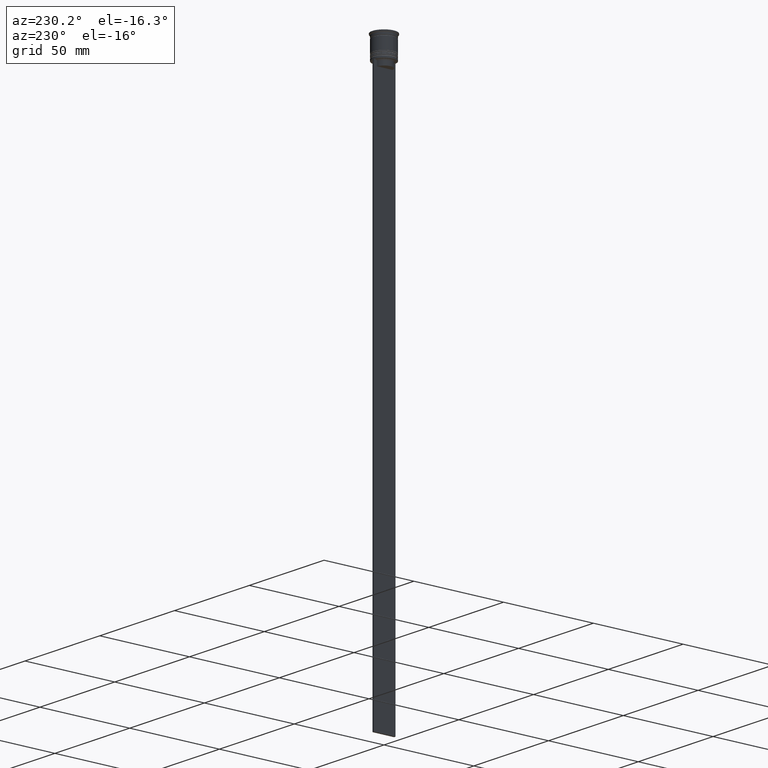
[diagram: clean part render]
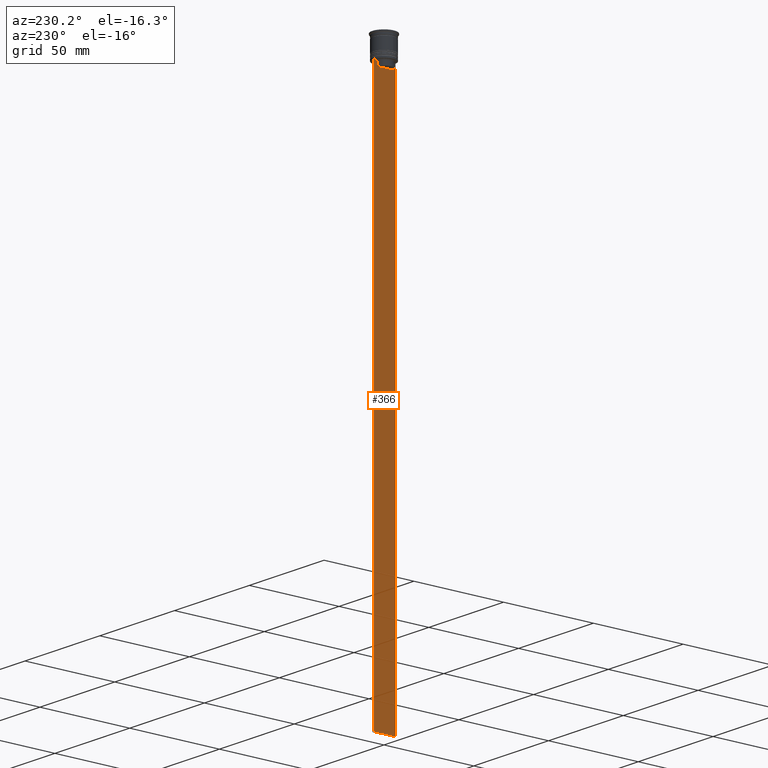
[diagram: same view with one face highlighted and labeled with its STEP entity id]
A machine part, auxiliary view. The second image highlights one B-rep face of the part: STEP entity #366.
In plain terms, the highlighted planar face has unit normal (-1, 0, 0).
Its self-contained STEP definition (entity closure, byte-faithful):
#11 = ORIENTED_EDGE ( 'NONE', *, *, #856, .F. ) ;
#26 = CARTESIAN_POINT ( 'NONE',  ( -0.4999999999999997780, 4.706831415367290106, -12.66671683478478982 ) ) ;
#105 = ORIENTED_EDGE ( 'NONE', *, *, #653, .F. ) ;
#133 = VECTOR ( 'NONE', #658, 1000.000000000000000 ) ;
#157 = CARTESIAN_POINT ( 'NONE',  ( -0.4999999999999997780, -4.371498598878878816, -15.50000000000000000 ) ) ;
#161 = ORIENTED_EDGE ( 'NONE', *, *, #1683, .F. ) ;
#169 = CARTESIAN_POINT ( 'NONE',  ( -0.4999999999999997780, -4.874423042781576676, -12.50000000000000000 ) ) ;
#196 = VERTEX_POINT ( 'NONE', #1521 ) ;
#200 = B_SPLINE_CURVE_WITH_KNOTS ( 'NONE', 3,
 ( #437, #26, #1167, #425 ),
 .UNSPECIFIED., .F., .F.,
 ( 4, 4 ),
 ( 0.008336552452178418518, 0.009045730124312837891 ),
 .UNSPECIFIED. ) ;
#222 = PLANE ( 'NONE',  #946 ) ;
#228 = EDGE_CURVE ( 'NONE', #196, #1793, #1161, .T. ) ;
#230 = LINE ( 'NONE', #1208, #1383 ) ;
#253 = VECTOR ( 'NONE', #2290, 1000.000000000000000 ) ;
#284 = VERTEX_POINT ( 'NONE', #169 ) ;
#348 = CARTESIAN_POINT ( 'NONE',  ( -0.4999999999999997780, -4.371498598878878816, -13.00000000000000178 ) ) ;
#366 = ADVANCED_FACE ( 'NONE', ( #441 ), #222, .T. ) ;
#413 = VERTEX_POINT ( 'NONE', #2334 ) ;
#415 = CARTESIAN_POINT ( 'NONE',  ( -0.4999999999999997780, -6.000000000000000000, -0.4584054212077061097 ) ) ;
#425 = CARTESIAN_POINT ( 'NONE',  ( -0.4999999999999997780, 4.371498598878878816, -13.00000000000000178 ) ) ;
#437 = CARTESIAN_POINT ( 'NONE',  ( -0.4999999999999997780, 4.874423042781576676, -12.50000000000000000 ) ) ;
#441 = FACE_OUTER_BOUND ( 'NONE', #2356, .T. ) ;
#449 = VERTEX_POINT ( 'NONE', #2196 ) ;
#463 = ORIENTED_EDGE ( 'NONE', *, *, #612, .F. ) ;
#496 = CARTESIAN_POINT ( 'NONE',  ( -0.4999999999999997780, 6.000000000000000888, -0.4584054212077061097 ) ) ;
#499 = VERTEX_POINT ( 'NONE', #891 ) ;
#507 = DIRECTION ( 'NONE',  ( 0.000000000000000000, -1.000000000000000000, 0.000000000000000000 ) ) ;
#572 = CARTESIAN_POINT ( 'NONE',  ( -0.4999999999999997780, -4.874423042781576676, -12.50000000000000000 ) ) ;
#605 = CARTESIAN_POINT ( 'NONE',  ( -0.4999999999999997780, -6.000000000000000000, -312.5000000000000000 ) ) ;
#608 = EDGE_CURVE ( 'NONE', #284, #413, #1510, .T. ) ;
#612 = EDGE_CURVE ( 'NONE', #449, #1492, #727, .T. ) ;
#636 = ORIENTED_EDGE ( 'NONE', *, *, #1894, .T. ) ;
#649 = VERTEX_POINT ( 'NONE', #2269 ) ;
#653 = EDGE_CURVE ( 'NONE', #1859, #1127, #1519, .T. ) ;
#658 = DIRECTION ( 'NONE',  ( 0.000000000000000000, -1.000000000000000000, 0.000000000000000000 ) ) ;
#727 = LINE ( 'NONE', #738, #253 ) ;
#738 = CARTESIAN_POINT ( 'NONE',  ( -0.4999999999999997780, -6.000000000000000000, -12.50000000000000000 ) ) ;
#752 = EDGE_CURVE ( 'NONE', #1528, #649, #230, .T. ) ;
#754 = DIRECTION ( 'NONE',  ( 0.000000000000000000, 0.000000000000000000, -1.000000000000000000 ) ) ;
#773 = DIRECTION ( 'NONE',  ( 0.000000000000000000, -1.000000000000000000, 0.000000000000000000 ) ) ;
#856 = EDGE_CURVE ( 'NONE', #1793, #1859, #1244, .T. ) ;
#891 = CARTESIAN_POINT ( 'NONE',  ( -0.4999999999999997780, 6.000000000000001776, -12.50000000000000000 ) ) ;
#943 = CARTESIAN_POINT ( 'NONE',  ( -0.4999999999999997780, -6.000000000000000000, -0.4584054212077061097 ) ) ;
#946 = AXIS2_PLACEMENT_3D ( 'NONE', #415, #1984, #1186 ) ;
#1114 = CARTESIAN_POINT ( 'NONE',  ( -0.4999999999999997780, 4.371498598878878816, -15.50000000000000000 ) ) ;
#1127 = VERTEX_POINT ( 'NONE', #2301 ) ;
#1161 = LINE ( 'NONE', #1724, #1944 ) ;
#1167 = CARTESIAN_POINT ( 'NONE',  ( -0.4999999999999997780, 4.539195634199897356, -12.83338923751318816 ) ) ;
#1186 = DIRECTION ( 'NONE',  ( 0.000000000000000000, 0.000000000000000000, 1.000000000000000000 ) ) ;
#1201 = B_SPLINE_CURVE_WITH_KNOTS ( 'NONE', 3,
 ( #348, #1517, #2435, #572 ),
 .UNSPECIFIED., .F., .F.,
 ( 4, 4 ),
 ( 0.02089901220910806920, 0.02161421017310284978 ),
 .UNSPECIFIED. ) ;
#1208 = CARTESIAN_POINT ( 'NONE',  ( -0.4999999999999997780, -6.000000000000000000, -312.5000000000000000 ) ) ;
#1240 = DIRECTION ( 'NONE',  ( 0.000000000000000000, -1.000000000000000000, 0.000000000000000000 ) ) ;
#1244 = LINE ( 'NONE', #1615, #133 ) ;
#1274 = LINE ( 'NONE', #496, #1298 ) ;
#1298 = VECTOR ( 'NONE', #2035, 1000.000000000000000 ) ;
#1374 = VECTOR ( 'NONE', #1240, 1000.000000000000000 ) ;
#1383 = VECTOR ( 'NONE', #1957, 1000.000000000000000 ) ;
#1468 = VECTOR ( 'NONE', #773, 1000.000000000000000 ) ;
#1492 = VERTEX_POINT ( 'NONE', #1660 ) ;
#1510 = LINE ( 'NONE', #1713, #1468 ) ;
#1517 = CARTESIAN_POINT ( 'NONE',  ( -0.4999999999999997780, -4.539195586926424220, -12.83338928448044136 ) ) ;
#1519 = LINE ( 'NONE', #1868, #1661 ) ;
#1521 = CARTESIAN_POINT ( 'NONE',  ( -0.4999999999999997780, 4.371498598878878816, -13.00000000000000178 ) ) ;
#1528 = VERTEX_POINT ( 'NONE', #605 ) ;
#1529 = DIRECTION ( 'NONE',  ( -0.000000000000000000, -0.000000000000000000, 1.000000000000000000 ) ) ;
#1615 = CARTESIAN_POINT ( 'NONE',  ( -0.4999999999999997780, 4.399999999999999467, -15.50000000000000000 ) ) ;
#1644 = ORIENTED_EDGE ( 'NONE', *, *, #228, .F. ) ;
#1660 = CARTESIAN_POINT ( 'NONE',  ( -0.4999999999999997780, 4.874423042781576676, -12.50000000000000000 ) ) ;
#1661 = VECTOR ( 'NONE', #1529, 1000.000000000000000 ) ;
#1665 = DIRECTION ( 'NONE',  ( 0.000000000000000000, 0.000000000000000000, -1.000000000000000000 ) ) ;
#1683 = EDGE_CURVE ( 'NONE', #413, #1709, #1961, .T. ) ;
#1709 = VERTEX_POINT ( 'NONE', #2353 ) ;
#1710 = LINE ( 'NONE', #943, #2148 ) ;
#1713 = CARTESIAN_POINT ( 'NONE',  ( -0.4999999999999997780, -6.000000000000000000, -12.50000000000000000 ) ) ;
#1724 = CARTESIAN_POINT ( 'NONE',  ( -0.4999999999999997780, 4.371498598878878816, 0.000000000000000000 ) ) ;
#1793 = VERTEX_POINT ( 'NONE', #1114 ) ;
#1829 = CARTESIAN_POINT ( 'NONE',  ( -0.4999999999999997780, -6.000000000000000000, -12.50000000000000000 ) ) ;
#1859 = VERTEX_POINT ( 'NONE', #157 ) ;
#1868 = CARTESIAN_POINT ( 'NONE',  ( -0.4999999999999997780, -4.371498598878878816, 0.000000000000000000 ) ) ;
#1894 = EDGE_CURVE ( 'NONE', #499, #649, #1274, .T. ) ;
#1944 = VECTOR ( 'NONE', #754, 1000.000000000000000 ) ;
#1957 = DIRECTION ( 'NONE',  ( 0.000000000000000000, 1.000000000000000000, 0.000000000000000000 ) ) ;
#1961 = LINE ( 'NONE', #2008, #1374 ) ;
#1984 = DIRECTION ( 'NONE',  ( -1.000000000000000000, 0.000000000000000000, 0.000000000000000000 ) ) ;
#2008 = CARTESIAN_POINT ( 'NONE',  ( -0.4999999999999997780, -6.000000000000000000, -12.50000000000000000 ) ) ;
#2035 = DIRECTION ( 'NONE',  ( 0.000000000000000000, 0.000000000000000000, -1.000000000000000000 ) ) ;
#2076 = ORIENTED_EDGE ( 'NONE', *, *, #2373, .F. ) ;
#2115 = EDGE_CURVE ( 'NONE', #499, #449, #2369, .T. ) ;
#2148 = VECTOR ( 'NONE', #1665, 1000.000000000000000 ) ;
#2174 = ORIENTED_EDGE ( 'NONE', *, *, #608, .F. ) ;
#2196 = CARTESIAN_POINT ( 'NONE',  ( -0.4999999999999997780, 5.878775382679627626, -12.50000000000000000 ) ) ;
#2235 = ORIENTED_EDGE ( 'NONE', *, *, #2271, .F. ) ;
#2237 = EDGE_CURVE ( 'NONE', #1709, #1528, #1710, .T. ) ;
#2269 = CARTESIAN_POINT ( 'NONE',  ( -0.4999999999999997780, 6.000000000000000888, -312.5000000000000000 ) ) ;
#2271 = EDGE_CURVE ( 'NONE', #1127, #284, #1201, .T. ) ;
#2290 = DIRECTION ( 'NONE',  ( 0.000000000000000000, -1.000000000000000000, 0.000000000000000000 ) ) ;
#2301 = CARTESIAN_POINT ( 'NONE',  ( -0.4999999999999997780, -4.371498598878878816, -13.00000000000000178 ) ) ;
#2305 = ORIENTED_EDGE ( 'NONE', *, *, #2237, .F. ) ;
#2334 = CARTESIAN_POINT ( 'NONE',  ( -0.4999999999999997780, -5.878775382679627626, -12.50000000000000000 ) ) ;
#2345 = ORIENTED_EDGE ( 'NONE', *, *, #2115, .F. ) ;
#2353 = CARTESIAN_POINT ( 'NONE',  ( -0.4999999999999997780, -6.000000000000000000, -12.50000000000000000 ) ) ;
#2356 = EDGE_LOOP ( 'NONE', ( #2076, #463, #2345, #636, #2358, #2305, #161, #2174, #2235, #105, #11, #1644 ) ) ;
#2358 = ORIENTED_EDGE ( 'NONE', *, *, #752, .F. ) ;
#2369 = LINE ( 'NONE', #1829, #2392 ) ;
#2373 = EDGE_CURVE ( 'NONE', #1492, #196, #200, .T. ) ;
#2392 = VECTOR ( 'NONE', #507, 1000.000000000000000 ) ;
#2435 = CARTESIAN_POINT ( 'NONE',  ( -0.4999999999999997780, -4.706831372970964544, -12.66671687695981596 ) ) ;